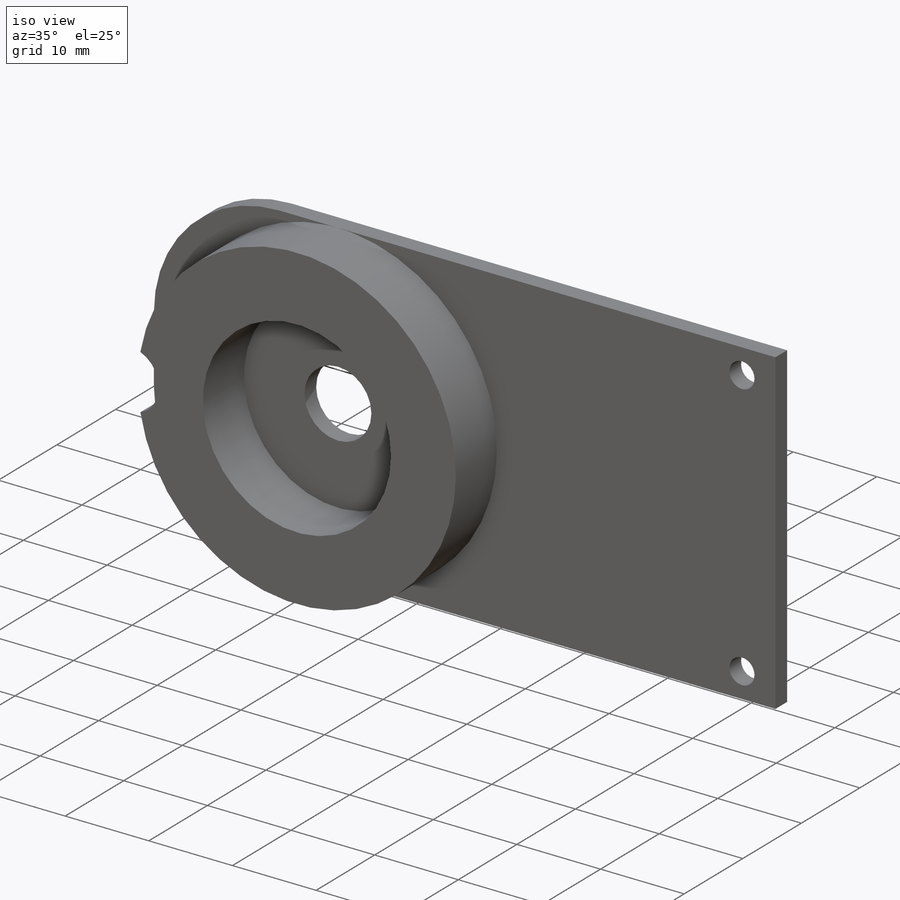
[diagram: iso view]
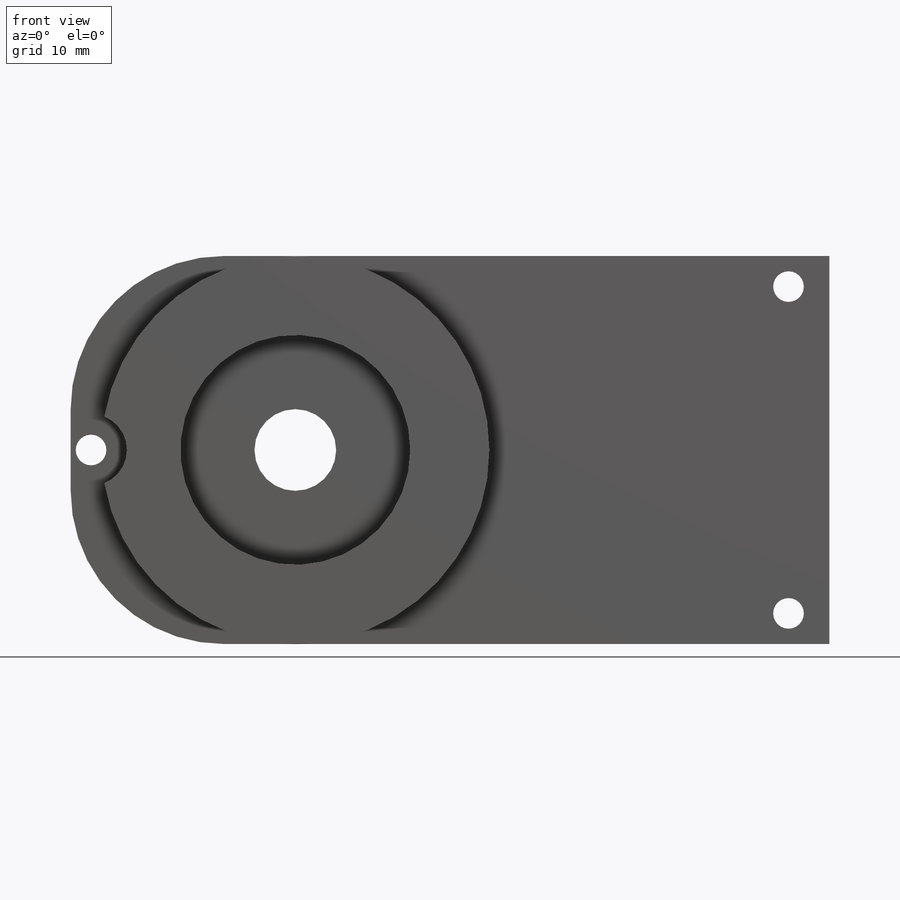
[diagram: front view]
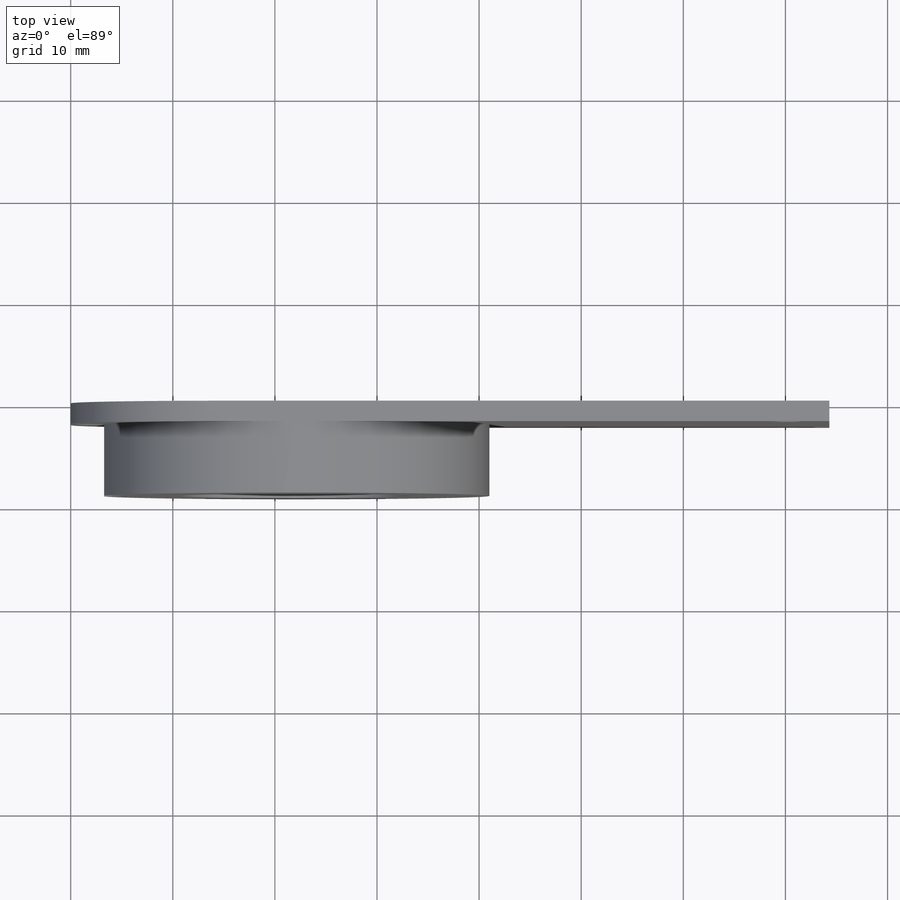
[diagram: top view]
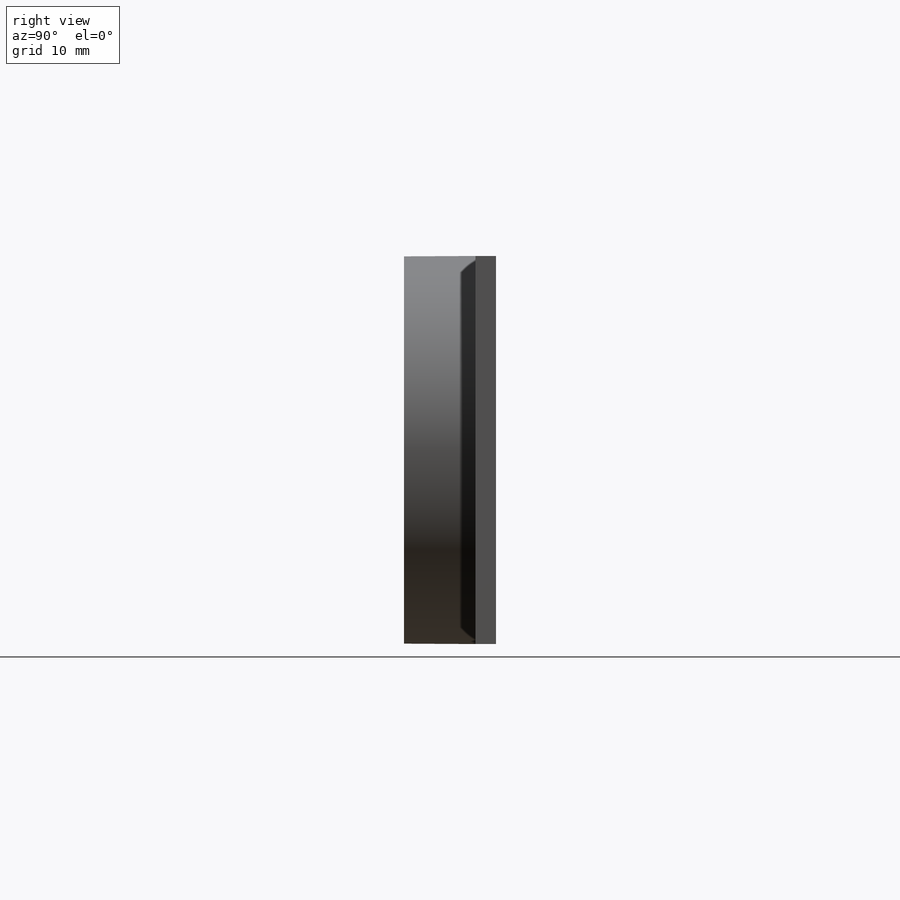
[diagram: right view]
SOLIDWORKS PART (.sldprt)
format: sldprt  version: not decoded by parser v0  size: 205,312 bytes
history: native  units: mm
features: sketch x9, cut_extrude x4, extrude x2, material x1, hole x1 + 1 further entry (+19 scaffold rows collapsed; 3 parser-record rows omitted)
feature tree (40):
  scaffold x19  (default folders/planes/origin — collapsed)
  material  "Material <not specified>"
  "neckrot"
  parser-record x3  (decoder bookkeeping rows leaked as tree rows — omitted from the tree; the rows remain in map.json)
  sketch  "Sketch1"  dims[D1=0.0mm D2=0.0mm]
  extrude  "Extrude1"  Depth=2mm
  sketch  "Sketch2"  dims[D1=0.0mm]
  sketch  "Sketch4"  dims[D2=43.0mm D1=0.0mm]
  extrude  "Extrude4"  Depth=9mm
  sketch  "Sketch3"  dims[D1=8.0mm]
  cut_extrude  "Extrude3"  [1 undecoded]
  sketch  "Sketch5"  dims[D1=22.5mm]
  cut_extrude  "Extrude5"  Depth=7mm
  hole  "Ø3.0 (3) Diameter Hole1"  Diameter=3mm Depth=20mm
  sketch  "3DSketch1"  dims[c1.D1=3.0mm c1.D2=4.0mm c1.D3=3.0mm c1.D4=~1.444583mm c1.D5=3.0mm c2.D4=~8.97058mm]
  sketch  "Sketch6"  dims[hole-wizard template sketch: 50 standard entries collapsed; hole parameters above]
  sketch  "Sketch7"  dims[D1=3.0mm D2=2.0mm]
  cut_extrude  "Extrude6"  Depth=10mm
  sketch  "Sketch8"  dims[D1=7.0mm]
  cut_extrude  "Extrude7"  [1 undecoded]
decode coverage: 14 of 16 modeling features carry decoded parameters; 1 rows unclassified (native names shown)
note: ~ marks probable driven/reference dimensions
note: 2 parameter values undecoded
note: suppression state not decoded; provenance and decode notes live in map.json
